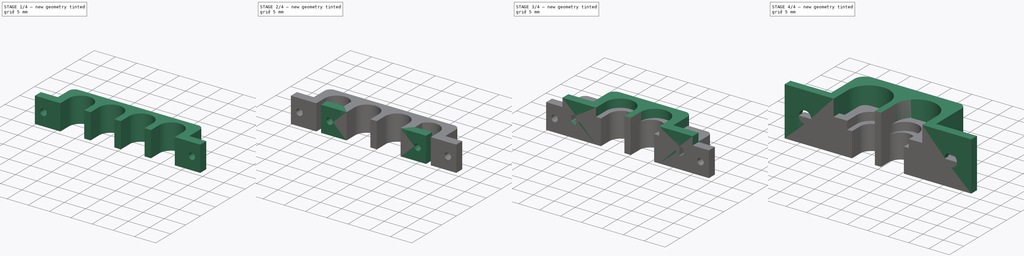
[diagram: build sequence overview — one tinted view per stage of 4, left to right]
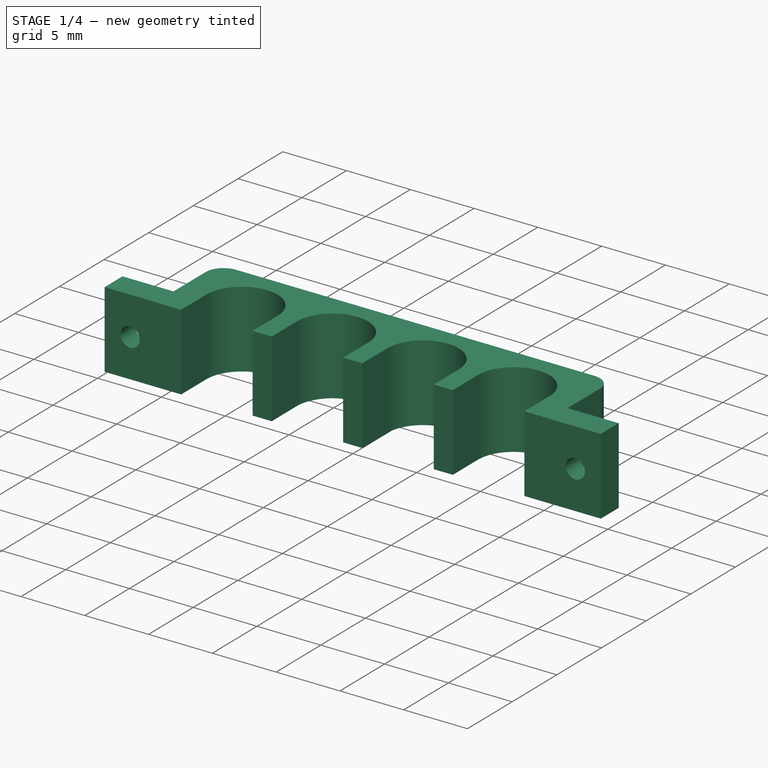
[diagram: stage 1 of 4 — iso view after this stage's code; geometry added in this stage tinted green]
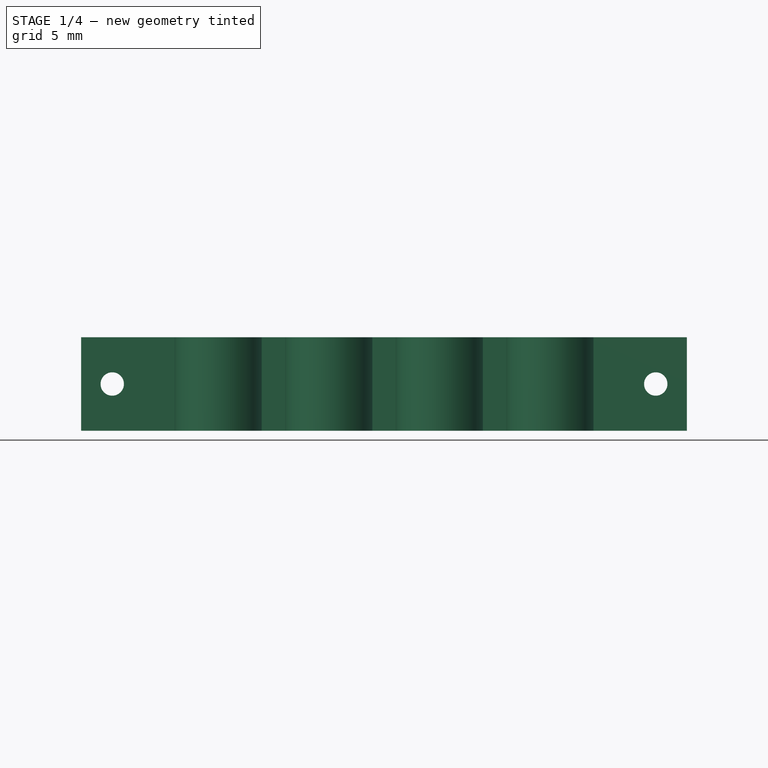
[diagram: stage 1 of 4 — front view after this stage's code; geometry added in this stage tinted green]
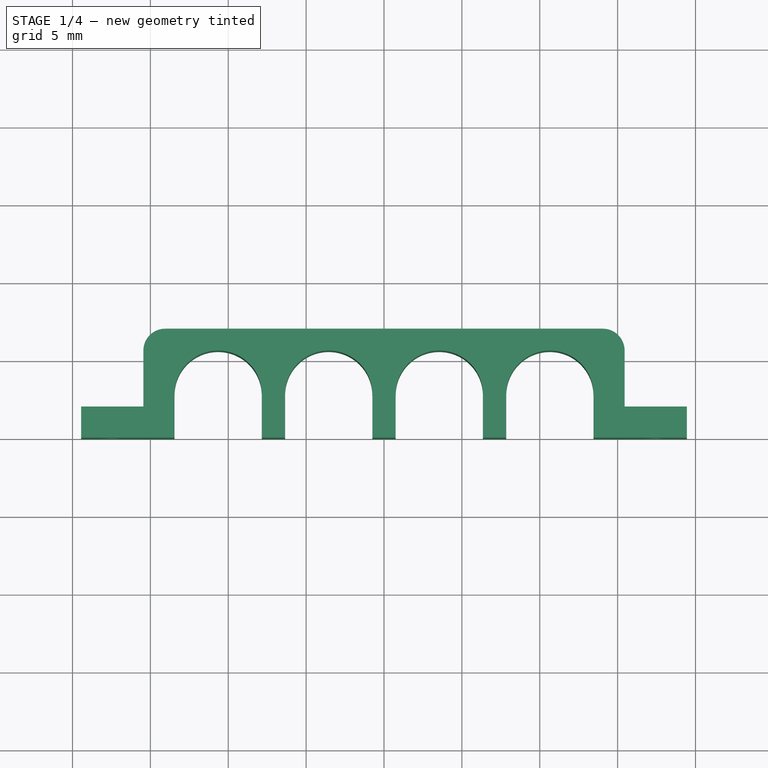
[diagram: stage 1 of 4 — top view after this stage's code; geometry added in this stage tinted green]
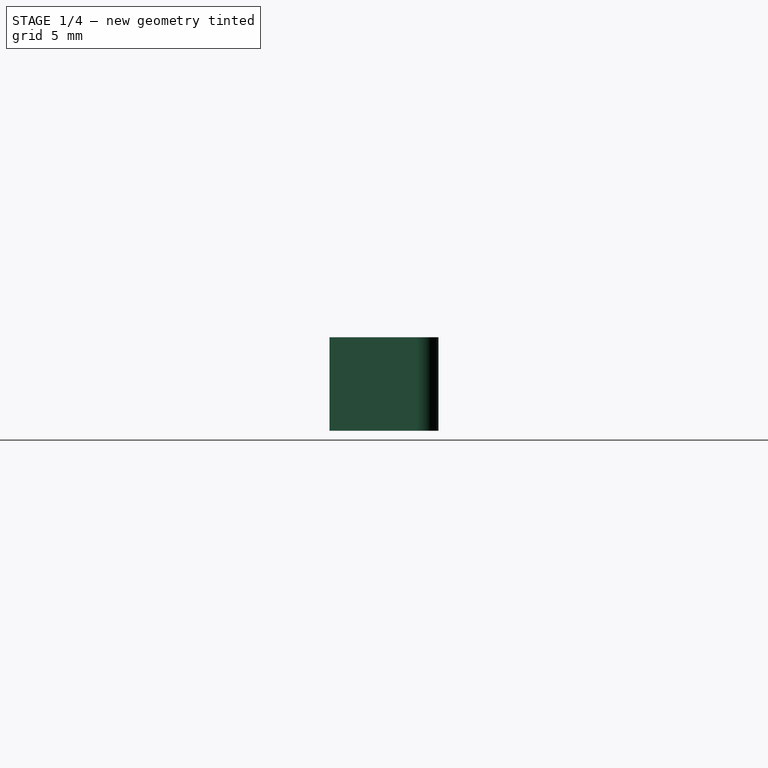
[diagram: stage 1 of 4 — right view after this stage's code; geometry added in this stage tinted green]
FCSTD DOCUMENT  (FreeCAD 0.21R33771 (Git))
Label: Various_Cable_Holders
License: All rights reserved
LicenseURL: http://en.wikipedia.org/wiki/All_rights_reserved
objects: Sketcher::SketchObject×8, PartDesign::Pad×4, PartDesign::Pocket×4, PartDesign::Chamfer×4, PartDesign::Body×4, App::Part×4, Spreadsheet::Sheet×1
note: 36 computed .brp shape members not serialized (recipe doc carries the construction recipe); baked Part::Feature solids carry a one-line shape summary decoded from their .brp

FEATURE [PartDesign::Body] Body002  label="2x10gBody"
  Group = -> [Sketch004,Pad002,Sketch005,Pocket002,Chamfer002]
  Origin = -> Origin005
  Tip = -> Chamfer002
FEATURE [App::Part] Part002  label="2x10gPart"
  Group = -> [Body002]
  Origin = -> Origin004
FEATURE [Sketcher::SketchObject] Sketch008
  FullyConstrained = true
  expr: Constraints[62] = <<p>>.depth_10g
  expr: Constraints[63] = <<p>>.depth_10g - <<p>>.holder_thickness
  expr: Constraints[64] = <<p>>.holder_thickness
  expr: Constraints[65] = <<p>>.wire_clearance
  expr: Constraints[66] = <<p>>.diameter_10g + <<p>>.wire_clearance
  expr: Constraints[67] = <<p>>.wire_clearance / 2
  expr: Constraints[70] = <<p>>.wire_clearance / 2
  expr: Constraints[72] = <<p>>.diameter_10g / 2
  expr: Constraints[75] = <<p>>.diameter_10g + <<p>>.wire_clearance / 2
  expr: Constraints[78] = <<p>>.diameter_10g
  expr: Constraints[79] = <<p>>.wire_clearance
  expr: Constraints[80] = <<p>>.diameter_10g / 2
  expr: Constraints[84] = <<p>>.holder_thickness
  expr: Constraints[85] = <<p>>.holder_thickness
  sketch-geometry (28):
    g0: LineSegment StartX=19.45 StartY=0 StartZ=0 EndX=13.45 EndY=0 EndZ=0
    g1: LineSegment StartX=19.45 StartY=2 StartZ=0 EndX=19.45 EndY=0 EndZ=0
    g2: LineSegment StartX=15.45 StartY=5.6 StartZ=0 EndX=15.45 EndY=2 EndZ=0
    g3: ArcOfCircle CenterX=10.65 CenterY=2.8 CenterZ=0 NormalX=0 NormalY=0 NormalZ=1 AngleXU=0 Radius=2.8 StartAngle=0 EndAngle=3.14159
    g4: ArcOfCircle CenterX=3.55 CenterY=2.8 CenterZ=0 NormalX=0 NormalY=0 NormalZ=1 AngleXU=0 Radius=2.8 StartAngle=0 EndAngle=3.14159
    g5: LineSegment StartX=7.85 StartY=2.8 StartZ=0 EndX=7.85 EndY=0 EndZ=0
    g6: LineSegment StartX=13.45 StartY=0 StartZ=0 EndX=13.45 EndY=2.8 EndZ=0
    g7: LineSegment StartX=0.75 StartY=2.8 StartZ=0 EndX=0.75 EndY=0 EndZ=0
    g8: LineSegment StartX=6.35 StartY=0 StartZ=0 EndX=6.35 EndY=2.8 EndZ=0
    g9: LineSegment StartX=7.85 StartY=0 StartZ=0 EndX=6.35 EndY=0 EndZ=0
    g10: LineSegment StartX=15.45 StartY=2 StartZ=0 EndX=19.45 EndY=2 EndZ=0
    g11: ArcOfCircle CenterX=14.05 CenterY=5.6 CenterZ=0 NormalX=0 NormalY=0 NormalZ=1 AngleXU=0 Radius=1.4 StartAngle=0 EndAngle=1.5708
    g12: LineSegment StartX=14.05 StartY=7 StartZ=0 EndX=0 EndY=7 EndZ=0
    g13: LineSegment StartX=0.75 StartY=0 StartZ=0 EndX=0 EndY=0 EndZ=0
    g14: LineSegment StartX=-19.45 StartY=0 StartZ=0 EndX=-13.45 EndY=0 EndZ=0
    g15: LineSegment StartX=-19.45 StartY=2 StartZ=0 EndX=-19.45 EndY=0 EndZ=0
    g16: LineSegment StartX=-15.45 StartY=5.6 StartZ=0 EndX=-15.45 EndY=2 EndZ=0
    g17: ArcOfCircle CenterX=-10.65 CenterY=2.8 CenterZ=0 NormalX=0 NormalY=0 NormalZ=1 AngleXU=0 Radius=2.8 StartAngle=6.28319 EndAngle=9.42478
    g18: ArcOfCircle CenterX=-3.55 CenterY=2.8 CenterZ=0 NormalX=0 NormalY=0 NormalZ=1 AngleXU=0 Radius=2.8 StartAngle=0 EndAngle=3.14159
    g19: LineSegment StartX=-7.85 StartY=2.8 StartZ=0 EndX=-7.85 EndY=0 EndZ=0
    g20: LineSegment StartX=-13.45 StartY=0 StartZ=0 EndX=-13.45 EndY=2.8 EndZ=0
    g21: LineSegment StartX=-0.75 StartY=2.8 StartZ=0 EndX=-0.75 EndY=0 EndZ=0
    g22: LineSegment StartX=-6.35 StartY=0 StartZ=0 EndX=-6.35 EndY=2.8 EndZ=0
    g23: LineSegment StartX=-7.85 StartY=0 StartZ=0 EndX=-6.35 EndY=0 EndZ=0
    g24: LineSegment StartX=-15.45 StartY=2 StartZ=0 EndX=-19.45 EndY=2 EndZ=0
    g25: ArcOfCircle CenterX=-14.05 CenterY=5.6 CenterZ=0 NormalX=0 NormalY=0 NormalZ=1 AngleXU=0 Radius=1.4 StartAngle=1.5708 EndAngle=3.14159
    g26: LineSegment StartX=-14.05 StartY=7 StartZ=0 EndX=0 EndY=7 EndZ=0
    g27: LineSegment StartX=-0.75 StartY=0 StartZ=0 EndX=0 EndY=0 EndZ=0
  constraints (87):
    c: Coincident(g10,g2)
    c: Coincident(g10,g1)
    c: Coincident(g1,g0)
    c: Coincident(g6,g0)
    c: Coincident(g9,g5)
    c: Coincident(g9,g8)
    c: Diameter(g3) = 5.6
    c: Diameter(g4) = 5.6
    c: Coincident(g8,g4)
    c: Coincident(g5,g3)
    c: Coincident(g3,g6)
    c: Coincident(g4,g7)
    c: Tangent(g2,g11) = 1.5708
    c: Diameter(g11) = 2.8
    c: Vertical(g2)
    c: Coincident(g12,g11)
    c: Horizontal(g12)
    c: Coincident(g13,g7)
    c: Coincident(g24,g16)
    c: Coincident(g24,g15)
    c: Coincident(g15,g14)
    c: Coincident(g20,g14)
    c: Coincident(g23,g19)
    c: Coincident(g23,g22)
    c: Diameter(g17) = 5.6
    c: Diameter(g18) = 5.6
    c: DistanceX(g17,g18) = 7.1
    c: DistanceX(g24,g24) = 4
    c: DistanceX(g14,g14) = 6
    c: DistanceY(g15,g15) = 2
    c: DistanceX(g23,g23) = 1.5
    c: DistanceY(g19,g-1) = 0
    c: DistanceY(g-1,g17) = 2.8
    c: DistanceY(g-1,g18) = 2.8
    c: DistanceY(g21,g-1) = 0
    c: DistanceY(g-1,g14) = 0
    c: DistanceY(g-1,g14) = 0
    c: DistanceY(g-1,g17) = 2.8
    c: DistanceY(g-1,g18) = 2.8
    c: DistanceX(g19,g22) = 1.5
    c: Coincident(g22,g18)
    c: Coincident(g19,g17)
    c: DistanceY(g22,g-1) = 0
    c: Coincident(g17,g20)
    c: Coincident(g18,g21)
    c: Tangent(g16,g25) = -1.5708
    c: Diameter(g25) = 2.8
    c: Vertical(g16)
    c: DistanceY(g-1,g16) = 2
    c: DistanceY(g-1,g25) = 5.6
    c: Coincident(g26,g25)
    c: Horizontal(g26)
    c: DistanceX(g25,g25) = 0
    c: DistanceX(g16,g17) = 2
    c: DistanceX(g17,g19) = 2.8
    c: DistanceX(g18,g21) = 2.8
    c: DistanceX(g14,g17) = 2.8
    c: DistanceX(g21,g-1) = 0.75
    c: DistanceX(g26,g-1) = 0
    c: DistanceY(g22,g22) = 2.8
    c: Coincident(g27,g21)
    c: Coincident(g27,g-1)
    c: DistanceX(g0,g0) = 6
    c: DistanceX(g10,g10) = 4
    c: DistanceY(g1,g1) = 2
    c: DistanceX(g9,g9) = 1.5
    c: DistanceX(g4,g3) = 7.1
    c: DistanceX(g13,g4) = 0.75
    c: DistanceY(g27,g7) = 0
    c: Coincident(g27,g13)
    c: DistanceX(g13,g7) = 0.75
    c: DistanceY(g4,g4) = 0
    c: DistanceY(g7,g4) = 2.8
    c: DistanceY(g4,g4) = 0
    c: DistanceY(g13,g8) = 0
    c: DistanceX(g13,g8) = 6.35
    c: DistanceY(g13,g5) = 0
    c: DistanceY(g13,g0) = 0
    c: DistanceX(g5,g0) = 5.6
    c: DistanceX(g4,g3) = 1.5
    c: DistanceY(g5,g3) = 2.8
    c: DistanceY(g3,g3) = 0
    c: Coincident(g26,g12)
    c: DistanceY(g0,g13) = 0
    c: DistanceX(g3,g2) = 2
    c: DistanceY(g13,g2) = 2
    c: DistanceX(g11,g11) = 0
FEATURE [PartDesign::Pad] Pad003  label="4x10gBodyPad"
  Direction = (0,0,1)
  Length = 6
  Length2 = 10
  Profile = -> Sketch008
  ReferenceAxis = -> Sketch008 [N_Axis]
  Type = 0
  expr: Length = <<p>>.depth_10g
FEATURE [Sketcher::SketchObject] Sketch009
  FullyConstrained = true
  MapMode = 5
  Placement = pos=(0,2,0) rot=(0,0.707107,0.707107;3.14159rad)
  Support = -> [Pad003]
  expr: Constraints[1] = <<p>>.hole_10g
  expr: Constraints[3] = <<p>>.depth_10g / 2
  expr: Constraints[4] = <<p>>.wire_clearance / 2 + <<p>>.diameter_10g + <<p>>.wire_clearance + <<p>>.diameter_10g + (<<p>>.depth_10g + <<p>>.holder_thickness) / 2
  expr: Constraints[5] = <<p>>.wire_clearance / 2 + <<p>>.diameter_10g + <<p>>.wire_clearance + <<p>>.diameter_10g + (<<p>>.depth_10g + <<p>>.holder_thickness) / 2
  sketch-geometry (2):
    g0: Circle CenterX=-17.45 CenterY=3 CenterZ=0 NormalX=0 NormalY=0 NormalZ=1 AngleXU=0 Radius=0.75
    g1: Circle CenterX=17.45 CenterY=3 CenterZ=0 NormalX=0 NormalY=0 NormalZ=1 AngleXU=0 Radius=0.75
  constraints (6):
    c: Equal(g0,g1)
    c: Diameter(g0) = 1.5
    c: DistanceY(g1,g0) = 0
    c: DistanceY(g-1,g0) = 3
    c: DistanceX(g0,g-1) = 17.45
    c: DistanceX(g-1,g1) = 17.45
FEATURE [PartDesign::Pocket] Pocket003  label="ScrewPockets003"
  BaseFeature = -> Pad003
  Direction = (0,-1,2e-16)
  Length = 2
  Length2 = 5
  Profile = -> Sketch009
  ReferenceAxis = -> Sketch009 [N_Axis]
  Type = 0
  expr: Length = <<p>>.holder_thickness
FEATURE [PartDesign::Chamfer] Chamfer003
  Angle = 45
  Base = -> Pocket003 [Edge11,Edge87]
  BaseFeature = -> Pocket003
  ChamferType = 0
  FlipDirection = false
  Size = 0.375
  Size2 = 1
  SupportTransform = false
  UseAllEdges = false
  expr: Size = <<p>>.hole_10g / 4
FEATURE [PartDesign::Body] Body003  label="4x10gBody"
  Group = -> [Sketch008,Pad003,Sketch009,Pocket003,Chamfer003]
  Origin = -> Origin007
  Tip = -> Chamfer003
FEATURE [App::Part] Part003  label="4x10gPart"
  Group = -> [Body003]
  Origin = -> Origin006
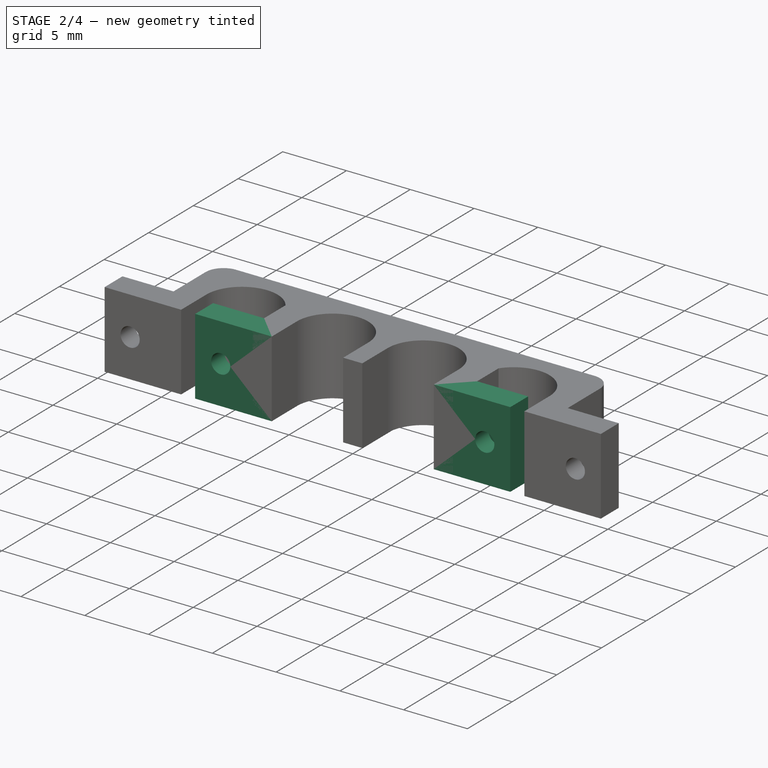
[diagram: stage 2 of 4 — iso view after this stage's code; geometry added in this stage tinted green]
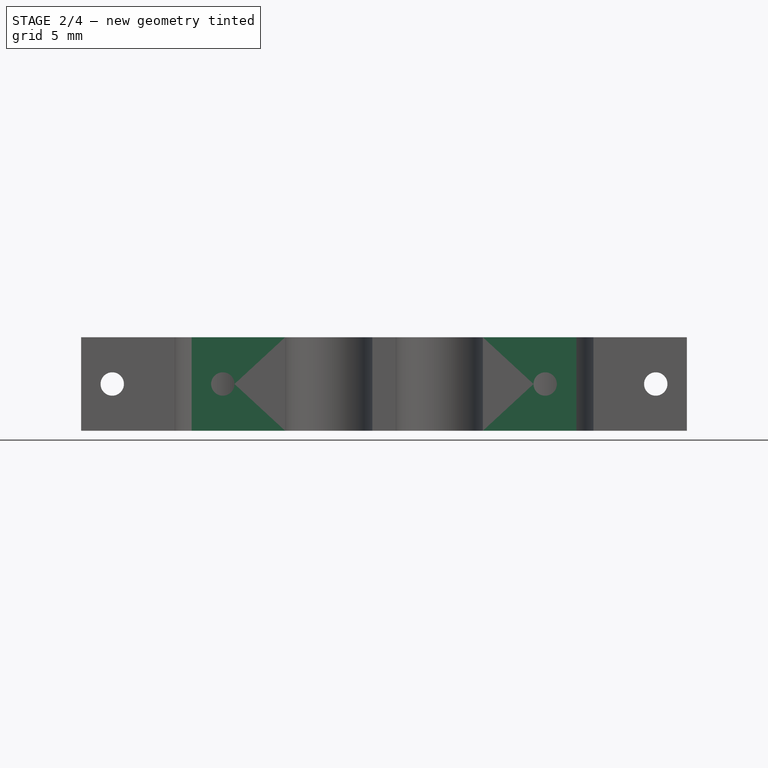
[diagram: stage 2 of 4 — front view after this stage's code; geometry added in this stage tinted green]
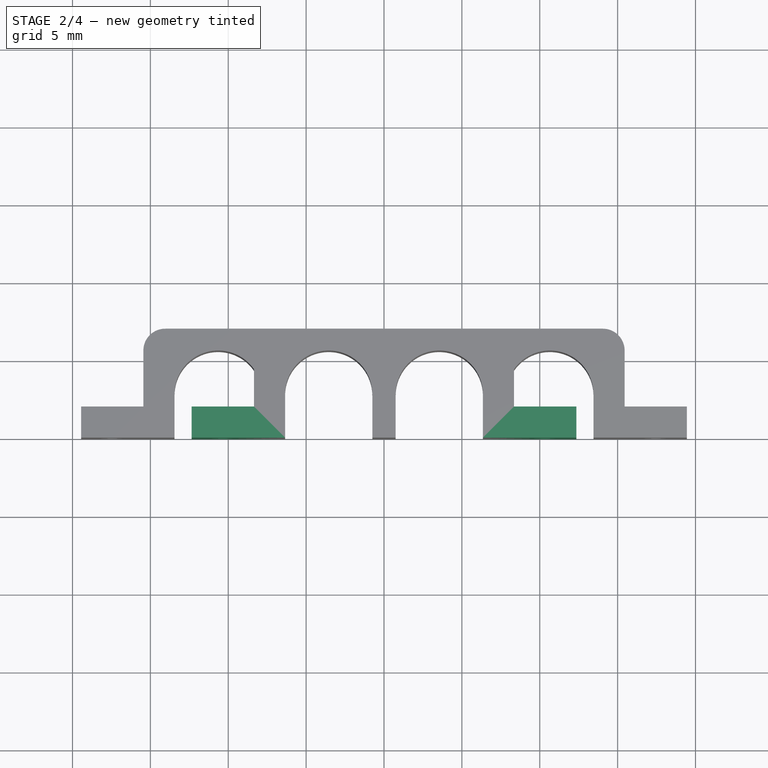
[diagram: stage 2 of 4 — top view after this stage's code; geometry added in this stage tinted green]
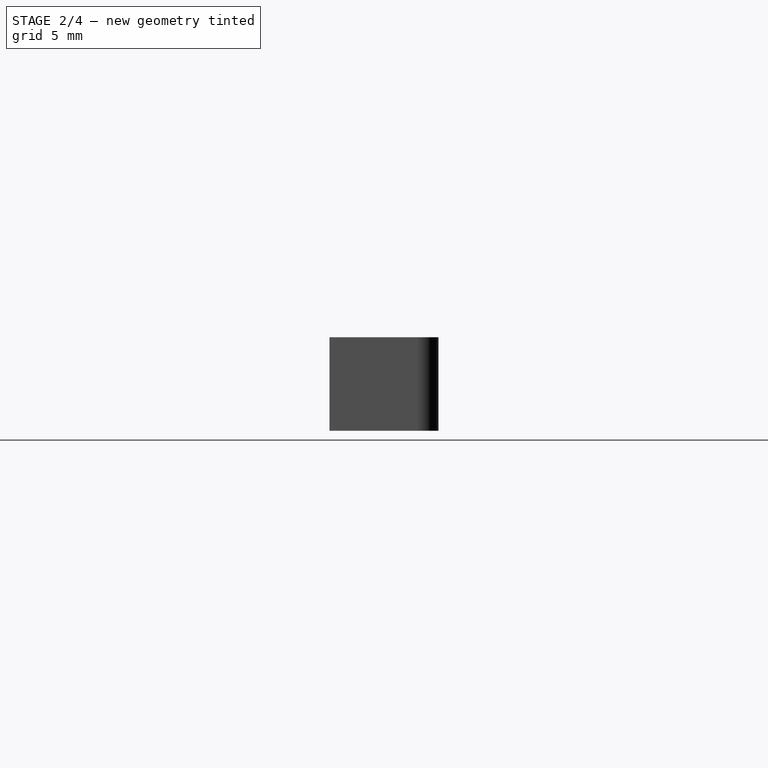
[diagram: stage 2 of 4 — right view after this stage's code; geometry added in this stage tinted green]
FEATURE [PartDesign::Body] Body  label="2x8gBody"
  Group = -> [Sketch,Pad,Sketch001,Pocket,Chamfer]
  Origin = -> Origin001
  Tip = -> Chamfer
FEATURE [App::Part] Part  label="2x8gPart"
  Group = -> [Body]
  Origin = -> Origin
FEATURE [Sketcher::SketchObject] Sketch004
  FullyConstrained = true
  MapMode = 5
  Support = -> [XY_Plane005]
  expr: Constraints[10] = Spreadsheet.diameter_10g
  expr: Constraints[11] = Spreadsheet.diameter_10g
  expr: Constraints[12] = Spreadsheet.diameter_10g + <<p>>.wire_clearance
  expr: Constraints[13] = Spreadsheet.diameter_10g / 2 + <<p>>.wire_clearance / 2
  expr: Constraints[14] = Spreadsheet.depth_10g - <<p>>.holder_thickness
  expr: Constraints[15] = Spreadsheet.depth_10g - <<p>>.holder_thickness
  expr: Constraints[16] = Spreadsheet.depth_10g
  expr: Constraints[17] = Spreadsheet.depth_10g
  expr: Constraints[18] = Spreadsheet.diameter_10g + <<p>>.wire_clearance / 2
  expr: Constraints[19] = Spreadsheet.diameter_10g + <<p>>.wire_clearance / 2
  expr: Constraints[20] = <<p>>.holder_thickness
  expr: Constraints[21] = <<p>>.holder_thickness
  expr: Constraints[22] = <<p>>.wire_clearance
  expr: Constraints[24] = <<p>>.wire_clearance / 2
  expr: Constraints[25] = Spreadsheet.diameter_10g / 2
  expr: Constraints[26] = Spreadsheet.diameter_10g / 2
  expr: Constraints[31] = Spreadsheet.diameter_10g + <<p>>.holder_thickness + <<p>>.wire_clearance / 2
  expr: Constraints[32] = Spreadsheet.diameter_10g + <<p>>.holder_thickness + <<p>>.wire_clearance / 2
  expr: Constraints[33] = <<p>>.holder_thickness
  expr: Constraints[34] = Spreadsheet.diameter_10g / 2
  expr: Constraints[35] = Spreadsheet.diameter_10g / 2
  expr: Constraints[36] = <<p>>.wire_clearance
  expr: Constraints[37] = <<p>>.wire_clearance / 2
  expr: Constraints[47] = Spreadsheet.diameter_10g / 2
  expr: Constraints[48] = Spreadsheet.diameter_10g / 2
  expr: Constraints[52] = <<p>>.holder_thickness
  expr: Constraints[53] = Spreadsheet.diameter_10g
  sketch-geometry (18):
    g0: LineSegment StartX=-12.35 StartY=0 StartZ=0 EndX=-6.35 EndY=0 EndZ=0
    g1: LineSegment StartX=12.35 StartY=0 StartZ=0 EndX=12.35 EndY=2 EndZ=0
    g2: LineSegment StartX=12.35 StartY=2 StartZ=0 EndX=8.35 EndY=2 EndZ=0
    g3: LineSegment StartX=-12.35 StartY=2 StartZ=0 EndX=-12.35 EndY=0 EndZ=0
    g4: LineSegment StartX=8.35 StartY=2 StartZ=0 EndX=8.35 EndY=5.6 EndZ=0
    g5: LineSegment StartX=6.95 StartY=7 StartZ=0 EndX=-6.95 EndY=7 EndZ=0
    g6: LineSegment StartX=-8.35 StartY=5.6 StartZ=0 EndX=-8.35 EndY=2 EndZ=0
    g7: ArcOfCircle CenterX=-3.55 CenterY=2.8 CenterZ=0 NormalX=0 NormalY=0 NormalZ=1 AngleXU=0 Radius=2.8 StartAngle=1.74551e-07 EndAngle=3.14159
    g8: ArcOfCircle CenterX=3.55 CenterY=2.8 CenterZ=0 NormalX=0 NormalY=0 NormalZ=1 AngleXU=0 Radius=2.8 StartAngle=1e-16 EndAngle=3.14159
    g9: LineSegment StartX=-0.75 StartY=2.8 StartZ=0 EndX=-0.75 EndY=0 EndZ=0
    g10: LineSegment StartX=-6.35 StartY=0 StartZ=0 EndX=-6.35 EndY=2.8 EndZ=0
    g11: LineSegment StartX=6.35 StartY=2.8 StartZ=0 EndX=6.35 EndY=0 EndZ=0
    g12: LineSegment StartX=0.75 StartY=0 StartZ=0 EndX=0.75 EndY=2.8 EndZ=0
    g13: LineSegment StartX=6.35 StartY=0 StartZ=0 EndX=12.35 EndY=0 EndZ=0
    g14: LineSegment StartX=-0.75 StartY=0 StartZ=0 EndX=0.75 EndY=0 EndZ=0
    g15: LineSegment StartX=-8.35 StartY=2 StartZ=0 EndX=-12.35 EndY=2 EndZ=0
    g16: ArcOfCircle CenterX=-6.95 CenterY=5.6 CenterZ=0 NormalX=0 NormalY=0 NormalZ=1 AngleXU=0 Radius=1.4 StartAngle=1.5708 EndAngle=3.14159
    g17: ArcOfCircle CenterX=6.95 CenterY=5.6 CenterZ=0 NormalX=0 NormalY=0 NormalZ=1 AngleXU=0 Radius=1.4 StartAngle=1e-16 EndAngle=1.5708
  constraints (54):
    c: Coincident(g2,g1)
    c: Coincident(g13,g1)
    c: Coincident(g4,g2)
    c: Coincident(g15,g6)
    c: Coincident(g15,g3)
    c: Coincident(g3,g0)
    c: Coincident(g10,g0)
    c: Coincident(g14,g9)
    c: Coincident(g14,g12)
    c: Coincident(g13,g11)
    c: Diameter(g7) = 5.6
    c: Diameter(g8) = 5.6
    c: DistanceX(g7,g8) = 7.1
    c: DistanceX(g7,g-1) = 3.55
    c: DistanceX(g15,g15) = 4
    c: DistanceX(g2,g2) = 4
    c: DistanceX(g0,g0) = 6
    c: DistanceX(g13,g13) = 6
    c: DistanceX(g0,g-1) = 6.35
    c: DistanceX(g-1,g11) = 6.35
    c: DistanceY(g3,g3) = 2
    c: DistanceY(g1,g1) = 2
    c: DistanceX(g14,g14) = 1.5
    c: DistanceY(g9,g-1) = 0
    c: DistanceX(g9,g-1) = 0.75
    c: DistanceY(g-1,g7) = 2.8
    c: DistanceY(g-1,g8) = 2.8
    c: DistanceY(g11,g-1) = 0
    c: DistanceY(g-1,g1) = 0
    c: DistanceY(g-1,g0) = 0
    c: DistanceY(g-1,g0) = 0
    c: DistanceX(g6,g-1) = 8.35
    c: DistanceX(g-1,g2) = 8.35
    c: DistanceY(g-1,g2) = 2
    c: DistanceY(g-1,g7) = 2.8
    c: DistanceY(g-1,g8) = 2.8
    c: DistanceX(g9,g12) = 1.5
    c: DistanceX(g-1,g12) = 0.75
    c: Coincident(g12,g8)
    c: Coincident(g9,g7)
    c: DistanceY(g12,g-1) = 0
    c: Coincident(g7,g10)
    c: Coincident(g8,g11)
    c: Tangent(g6,g16) = -1.5708
    c: Tangent(g5,g16) = -1.5708
    c: Tangent(g4,g17) = -1.5708
    c: Tangent(g5,g17) = -1.5708
    c: Diameter(g17) = 2.8
    c: Diameter(g16) = 2.8
    c: Horizontal(g5)
    c: Vertical(g6)
    c: Vertical(g4)
    c: DistanceY(g-1,g6) = 2
    c: DistanceY(g-1,g16) = 5.6
FEATURE [PartDesign::Pad] Pad002  label="2x10gBodyPad"
  Direction = (0,0,1)
  Length = 6
  Length2 = 10
  Profile = -> Sketch004
  ReferenceAxis = -> Sketch004 [N_Axis]
  Type = 0
  expr: Length = Spreadsheet.depth_10g
FEATURE [Sketcher::SketchObject] Sketch005
  FullyConstrained = true
  MapMode = 5
  Placement = pos=(0,2,0) rot=(0,0.707107,0.707107;3.14159rad)
  Support = -> [Pad002]
  expr: Constraints[1] = Spreadsheet.hole_10g
  expr: Constraints[3] = Spreadsheet.depth_10g / 2
  expr: Constraints[4] = (Spreadsheet.depth_10g + <<p>>.holder_thickness) / 2 + Spreadsheet.diameter_10g + <<p>>.wire_clearance / 2
  expr: Constraints[5] = (Spreadsheet.depth_10g + <<p>>.holder_thickness) / 2 + Spreadsheet.diameter_10g + <<p>>.wire_clearance / 2
  sketch-geometry (2):
    g0: Circle CenterX=-10.35 CenterY=3 CenterZ=0 NormalX=0 NormalY=0 NormalZ=1 AngleXU=0 Radius=0.75
    g1: Circle CenterX=10.35 CenterY=3 CenterZ=0 NormalX=0 NormalY=0 NormalZ=1 AngleXU=0 Radius=0.75
  constraints (6):
    c: Equal(g0,g1)
    c: Diameter(g0) = 1.5
    c: DistanceY(g0,g1) = 0
    c: DistanceY(g-1,g0) = 3
    c: DistanceX(g0,g-1) = 10.35
    c: DistanceX(g-1,g1) = 10.35
FEATURE [PartDesign::Pocket] Pocket002  label="ScrewPockets002"
  BaseFeature = -> Pad002
  Direction = (0,-1,2e-16)
  Length = 2
  Length2 = 5
  Profile = -> Sketch005
  ReferenceAxis = -> Sketch005 [N_Axis]
  Type = 0
  expr: Length = <<p>>.hole_8g
FEATURE [PartDesign::Chamfer] Chamfer002
  Angle = 45
  Base = -> Pocket002 [Edge44,Edge53,Edge45]
  BaseFeature = -> Pocket002
  ChamferType = 0
  FlipDirection = false
  Size = 0.5
  Size2 = 1
  SupportTransform = false
  UseAllEdges = false
  expr: Size = Spreadsheet.hole_8g / 4
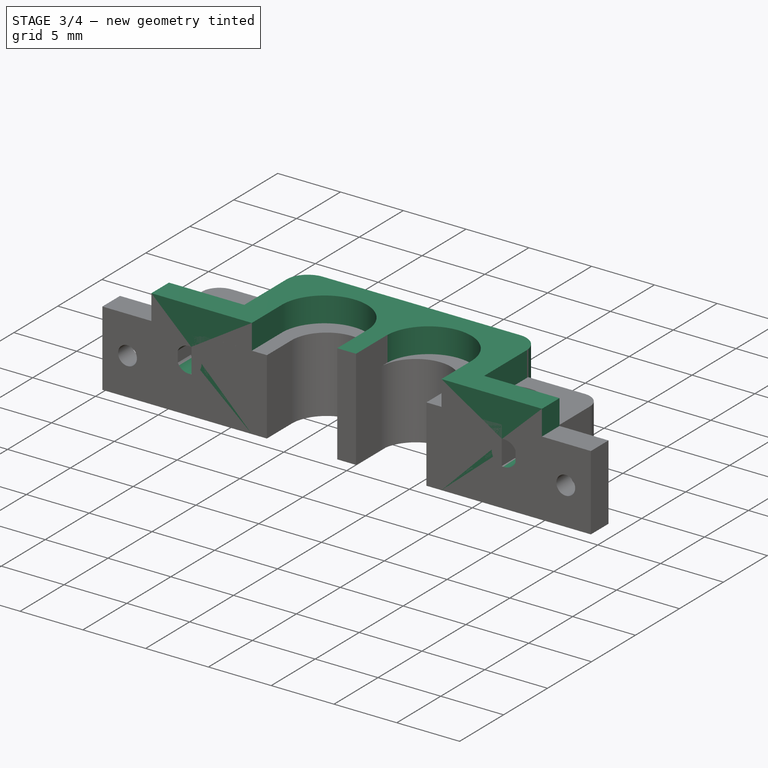
[diagram: stage 3 of 4 — iso view after this stage's code; geometry added in this stage tinted green]
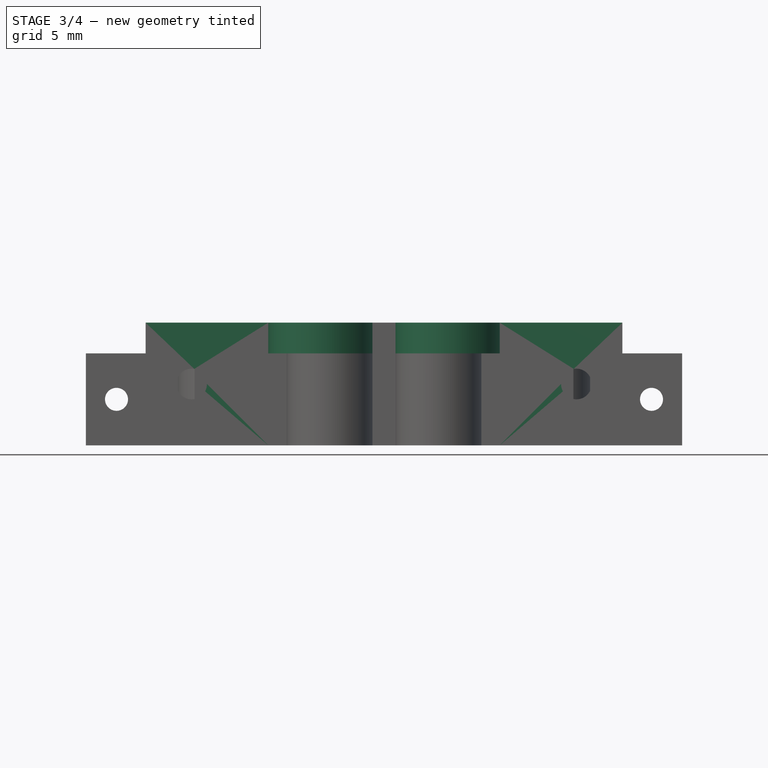
[diagram: stage 3 of 4 — front view after this stage's code; geometry added in this stage tinted green]
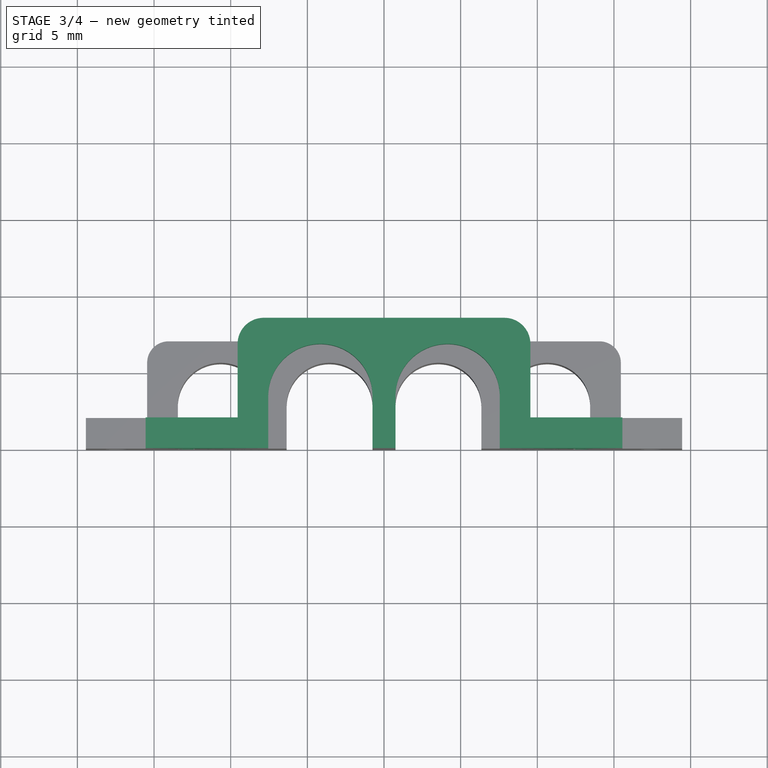
[diagram: stage 3 of 4 — top view after this stage's code; geometry added in this stage tinted green]
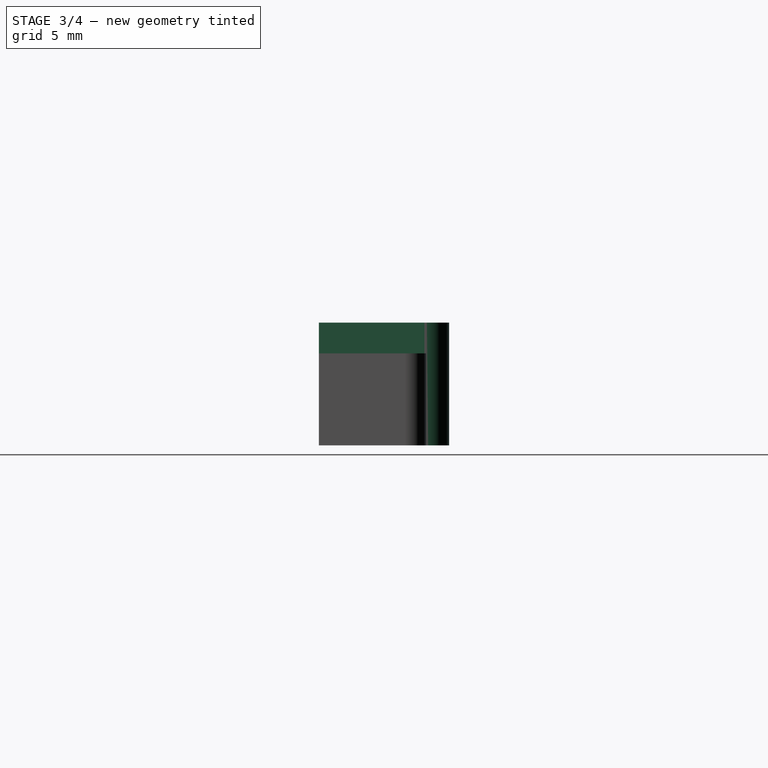
[diagram: stage 3 of 4 — right view after this stage's code; geometry added in this stage tinted green]
FEATURE [Sketcher::SketchObject] Sketch
  FullyConstrained = true
  MapMode = 5
  Support = -> [XY_Plane001]
  expr: Constraints[10] = Spreadsheet.diameter_8g
  expr: Constraints[11] = Spreadsheet.diameter_8g
  expr: Constraints[12] = Spreadsheet.diameter_8g + <<p>>.wire_clearance
  expr: Constraints[13] = Spreadsheet.diameter_8g / 2 + <<p>>.wire_clearance / 2
  expr: Constraints[14] = Spreadsheet.depth_8g - <<p>>.holder_thickness
  expr: Constraints[15] = Spreadsheet.depth_8g - <<p>>.holder_thickness
  expr: Constraints[16] = Spreadsheet.depth_8g
  expr: Constraints[17] = Spreadsheet.depth_8g
  expr: Constraints[18] = Spreadsheet.diameter_8g + <<p>>.wire_clearance / 2
  expr: Constraints[19] = Spreadsheet.diameter_8g + <<p>>.wire_clearance / 2
  expr: Constraints[20] = <<p>>.holder_thickness
  expr: Constraints[21] = <<p>>.holder_thickness
  expr: Constraints[22] = <<p>>.wire_clearance
  expr: Constraints[24] = <<p>>.wire_clearance / 2
  expr: Constraints[25] = Spreadsheet.diameter_8g / 2
  expr: Constraints[26] = Spreadsheet.diameter_8g / 2
  expr: Constraints[31] = Spreadsheet.diameter_8g + <<p>>.holder_thickness + <<p>>.wire_clearance / 2
  expr: Constraints[32] = Spreadsheet.diameter_8g + <<p>>.holder_thickness + <<p>>.wire_clearance / 2
  expr: Constraints[33] = <<p>>.holder_thickness
  expr: Constraints[34] = Spreadsheet.diameter_8g / 2
  expr: Constraints[35] = Spreadsheet.diameter_8g / 2
  expr: Constraints[36] = <<p>>.wire_clearance
  expr: Constraints[37] = <<p>>.wire_clearance / 2
  expr: Constraints[47] = Spreadsheet.diameter_8g / 2
  expr: Constraints[48] = Spreadsheet.diameter_8g / 2
  expr: Constraints[52] = <<p>>.holder_thickness
  expr: Constraints[53] = Spreadsheet.diameter_8g
  sketch-geometry (18):
    g0: LineSegment StartX=-15.55 StartY=0 StartZ=0 EndX=-7.55 EndY=0 EndZ=0
    g1: LineSegment StartX=15.55 StartY=0 StartZ=0 EndX=15.55 EndY=2 EndZ=0
    g2: LineSegment StartX=15.55 StartY=2 StartZ=0 EndX=9.55 EndY=2 EndZ=0
    g3: LineSegment StartX=-15.55 StartY=2 StartZ=0 EndX=-15.55 EndY=0 EndZ=0
    g4: LineSegment StartX=9.55 StartY=2 StartZ=0 EndX=9.55 EndY=6.8 EndZ=0
    g5: LineSegment StartX=7.85 StartY=8.5 StartZ=0 EndX=-7.85 EndY=8.5 EndZ=0
    g6: LineSegment StartX=-9.55 StartY=6.8 StartZ=0 EndX=-9.55 EndY=2 EndZ=0
    g7: ArcOfCircle CenterX=-4.15 CenterY=3.4 CenterZ=0 NormalX=0 NormalY=0 NormalZ=1 AngleXU=0 Radius=3.4 StartAngle=6.28318 EndAngle=9.42478
    g8: ArcOfCircle CenterX=4.15 CenterY=3.4 CenterZ=0 NormalX=0 NormalY=0 NormalZ=1 AngleXU=0 Radius=3.4 StartAngle=0 EndAngle=3.14159
    g9: LineSegment StartX=-0.75 StartY=3.39999 StartZ=0 EndX=-0.75 EndY=0 EndZ=0
    g10: LineSegment StartX=-7.55 StartY=0 StartZ=0 EndX=-7.55 EndY=3.4 EndZ=0
    g11: LineSegment StartX=7.55 StartY=3.4 StartZ=0 EndX=7.55 EndY=0 EndZ=0
    g12: LineSegment StartX=0.75 StartY=0 StartZ=0 EndX=0.75 EndY=3.4 EndZ=0
    g13: LineSegment StartX=7.55 StartY=0 StartZ=0 EndX=15.55 EndY=0 EndZ=0
    g14: LineSegment StartX=-0.75 StartY=0 StartZ=0 EndX=0.75 EndY=0 EndZ=0
    g15: LineSegment StartX=-9.55 StartY=2 StartZ=0 EndX=-15.55 EndY=2 EndZ=0
    g16: ArcOfCircle CenterX=-7.85 CenterY=6.8 CenterZ=0 NormalX=0 NormalY=0 NormalZ=1 AngleXU=0 Radius=1.7 StartAngle=1.5708 EndAngle=3.14159
    g17: ArcOfCircle CenterX=7.85 CenterY=6.8 CenterZ=0 NormalX=0 NormalY=0 NormalZ=1 AngleXU=0 Radius=1.7 StartAngle=1e-16 EndAngle=1.5708
  constraints (54):
    c: Coincident(g2,g1)
    c: Coincident(g13,g1)
    c: Coincident(g4,g2)
    c: Coincident(g15,g6)
    c: Coincident(g15,g3)
    c: Coincident(g3,g0)
    c: Coincident(g10,g0)
    c: Coincident(g14,g9)
    c: Coincident(g14,g12)
    c: Coincident(g13,g11)
    c: Diameter(g7) = 6.8
    c: Diameter(g8) = 6.8
    c: DistanceX(g7,g8) = 8.3
    c: DistanceX(g7,g-1) = 4.15
    c: DistanceX(g15,g15) = 6
    c: DistanceX(g2,g2) = 6
    c: DistanceX(g0,g0) = 8
    c: DistanceX(g13,g13) = 8
    c: DistanceX(g0,g-1) = 7.55
    c: DistanceX(g-1,g11) = 7.55
    c: DistanceY(g3,g3) = 2
    c: DistanceY(g1,g1) = 2
    c: DistanceX(g14,g14) = 1.5
    c: DistanceY(g9,g-1) = 0
    c: DistanceX(g9,g-1) = 0.75
    c: DistanceY(g-1,g7) = 3.4
    c: DistanceY(g-1,g8) = 3.4
    c: DistanceY(g11,g-1) = 0
    c: DistanceY(g-1,g1) = 0
    c: DistanceY(g-1,g0) = 0
    c: DistanceY(g-1,g0) = 0
    c: DistanceX(g6,g-1) = 9.55
    c: DistanceX(g-1,g2) = 9.55
    c: DistanceY(g-1,g2) = 2
    c: DistanceY(g-1,g7) = 3.4
    c: DistanceY(g-1,g8) = 3.4
    c: DistanceX(g9,g12) = 1.5
    c: DistanceX(g-1,g12) = 0.75
    c: Coincident(g12,g8)
    c: Coincident(g9,g7)
    c: DistanceY(g12,g-1) = 0
    c: Coincident(g7,g10)
    c: Coincident(g8,g11)
    c: Tangent(g6,g16) = -1.5708
    c: Tangent(g5,g16) = -1.5708
    c: Tangent(g4,g17) = -1.5708
    c: Tangent(g5,g17) = -1.5708
    c: Diameter(g17) = 3.4
    c: Diameter(g16) = 3.4
    c: Horizontal(g5)
    c: Vertical(g6)
    c: Vertical(g4)
    c: DistanceY(g-1,g6) = 2
    c: DistanceY(g-1,g16) = 6.8
FEATURE [Spreadsheet::Sheet] Spreadsheet  label="p"
  cells = A1='diameter_4g; B1(diameter_4g)=10.1; A2='diameter_8g; B2(diameter_8g)=6.8; A3='diameter_10g; B3(diameter_10g)=5.6; A5='wire_clearance; B5(wire_clearance)=1.5; A6='holder_thickness; B6(holder_thickness)=2; A8='depth_4g; B8(depth_4g)=12; A9='depth_8g; B9(depth_8g)=8; A10='depth_10g; B10(depth_10g)=6; A12='hole_4g; B12(hole_4g)=3; A13='hole_8g; B13(hole_8g)=2; A14='hole_10g; B14(hole_10g)=1.5
FEATURE [PartDesign::Pad] Pad  label="2x8gBodyPad"
  Direction = (0,0,1)
  Length = 8
  Length2 = 10
  Profile = -> Sketch
  ReferenceAxis = -> Sketch [N_Axis]
  Type = 0
  expr: Length = Spreadsheet.depth_8g
FEATURE [Sketcher::SketchObject] Sketch001
  FullyConstrained = true
  MapMode = 5
  Placement = pos=(0,2,0) rot=(0,0.707107,0.707107;3.14159rad)
  Support = -> [Pad]
  expr: Constraints[1] = Spreadsheet.hole_8g
  expr: Constraints[3] = Spreadsheet.depth_8g / 2
  expr: Constraints[4] = (Spreadsheet.depth_8g + <<p>>.holder_thickness) / 2 + Spreadsheet.diameter_8g + <<p>>.wire_clearance / 2
  expr: Constraints[5] = (Spreadsheet.depth_8g + <<p>>.holder_thickness) / 2 + Spreadsheet.diameter_8g + <<p>>.wire_clearance / 2
  sketch-geometry (2):
    g0: Circle CenterX=-12.55 CenterY=4 CenterZ=0 NormalX=0 NormalY=0 NormalZ=1 AngleXU=0 Radius=1
    g1: Circle CenterX=12.55 CenterY=4 CenterZ=0 NormalX=0 NormalY=0 NormalZ=1 AngleXU=0 Radius=1
  constraints (6):
    c: Equal(g0,g1)
    c: Diameter(g0) = 2
    c: DistanceY(g0,g1) = 0
    c: DistanceY(g-1,g0) = 4
    c: DistanceX(g0,g-1) = 12.55
    c: DistanceX(g-1,g1) = 12.55
FEATURE [PartDesign::Pocket] Pocket  label="ScrewPockets"
  BaseFeature = -> Pad
  Direction = (0,-1,2e-16)
  Length = 2
  Length2 = 5
  Profile = -> Sketch001
  ReferenceAxis = -> Sketch001 [N_Axis]
  Type = 0
  expr: Length = <<p>>.hole_8g
FEATURE [PartDesign::Body] Body001  label="2x4gBody"
  Group = -> [Sketch002,Pad001,Sketch003,Pocket001,Chamfer001]
  Origin = -> Origin003
  Tip = -> Chamfer001
FEATURE [App::Part] Part001  label="2x4gPart"
  Group = -> [Body001]
  Origin = -> Origin002
FEATURE [PartDesign::Chamfer] Chamfer
  Angle = 45
  Base = -> Pocket [Edge44,Edge53,Edge45]
  BaseFeature = -> Pocket
  ChamferType = 0
  FlipDirection = false
  Size = 0.5
  Size2 = 1
  SupportTransform = false
  UseAllEdges = false
  expr: Size = Spreadsheet.hole_8g / 4
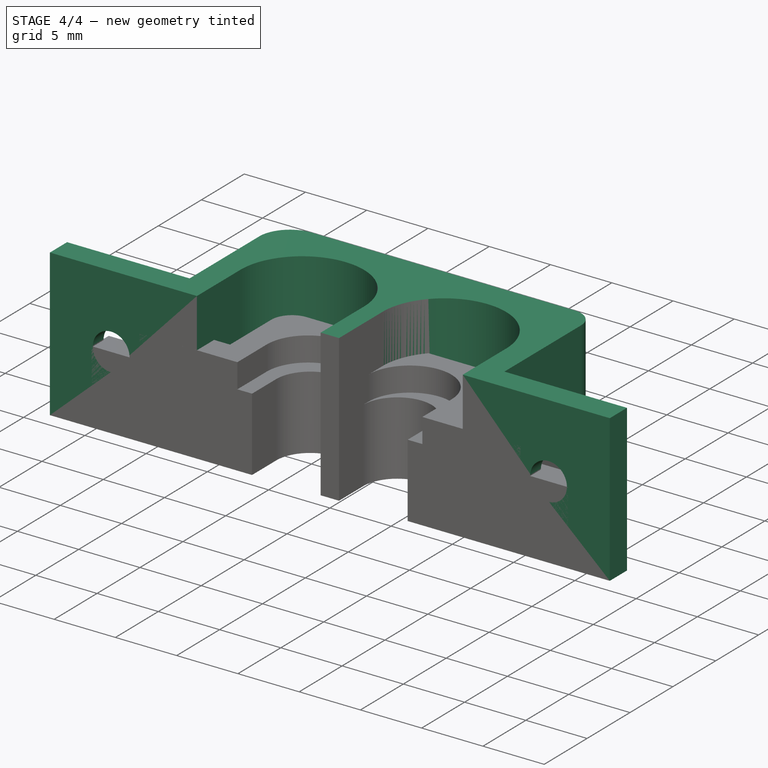
[diagram: stage 4 of 4 — iso view after this stage's code; geometry added in this stage tinted green]
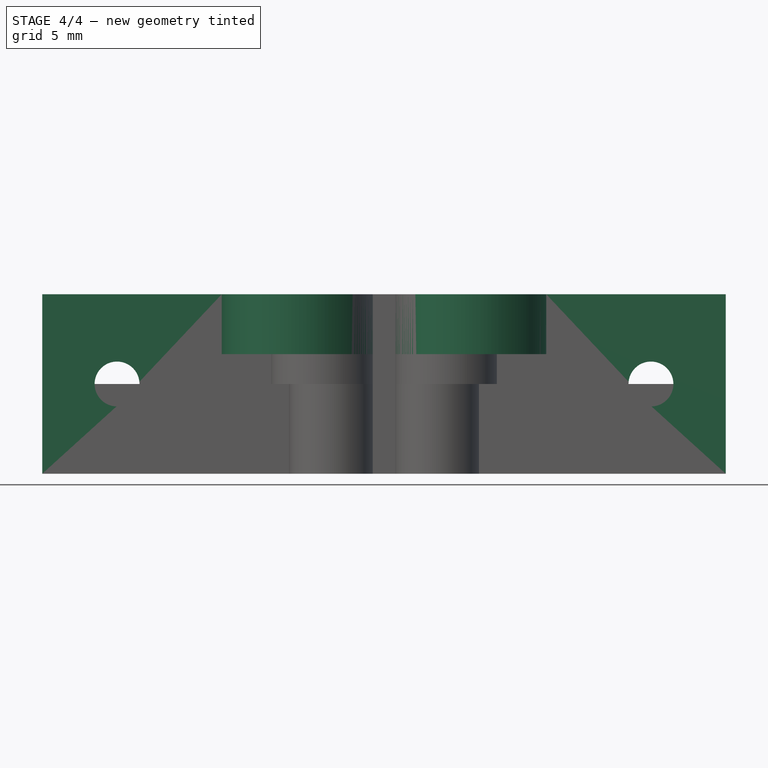
[diagram: stage 4 of 4 — front view after this stage's code; geometry added in this stage tinted green]
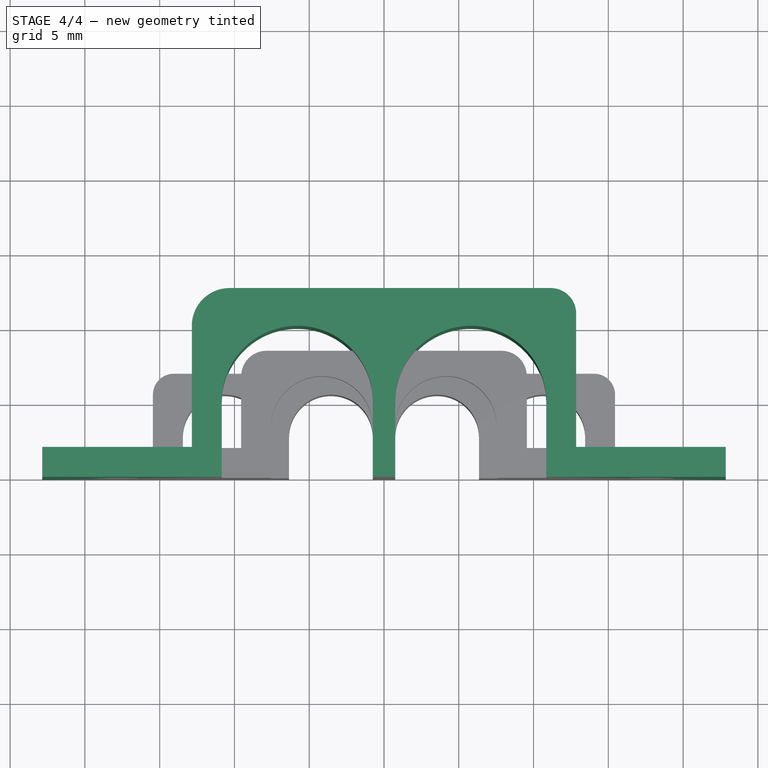
[diagram: stage 4 of 4 — top view after this stage's code; geometry added in this stage tinted green]
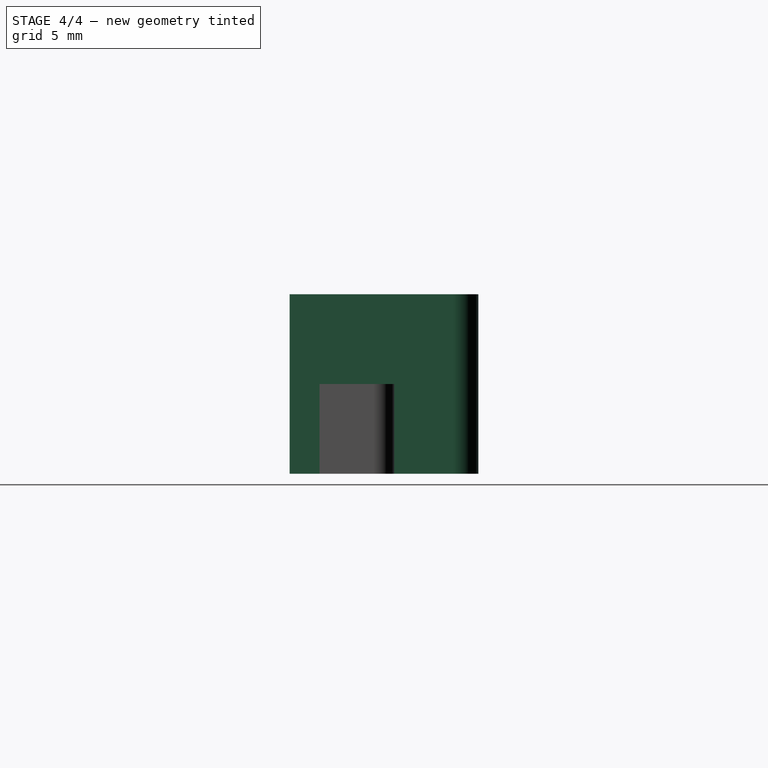
[diagram: stage 4 of 4 — right view after this stage's code; geometry added in this stage tinted green]
FEATURE [Sketcher::SketchObject] Sketch002
  FullyConstrained = true
  MapMode = 5
  Support = -> [XY_Plane003]
  expr: Constraints[10] = Spreadsheet.diameter_4g
  expr: Constraints[11] = Spreadsheet.diameter_4g
  expr: Constraints[12] = Spreadsheet.diameter_4g + <<p>>.wire_clearance
  expr: Constraints[13] = Spreadsheet.diameter_4g / 2 + <<p>>.wire_clearance / 2
  expr: Constraints[14] = Spreadsheet.depth_4g - <<p>>.holder_thickness
  expr: Constraints[15] = Spreadsheet.depth_4g - <<p>>.holder_thickness
  expr: Constraints[16] = Spreadsheet.depth_4g
  expr: Constraints[17] = Spreadsheet.depth_4g
  expr: Constraints[18] = Spreadsheet.diameter_4g + <<p>>.wire_clearance / 2
  expr: Constraints[19] = Spreadsheet.diameter_4g + <<p>>.wire_clearance / 2
  expr: Constraints[20] = <<p>>.holder_thickness
  expr: Constraints[21] = <<p>>.holder_thickness
  expr: Constraints[22] = <<p>>.wire_clearance
  expr: Constraints[24] = <<p>>.wire_clearance / 2
  expr: Constraints[25] = Spreadsheet.diameter_4g / 2
  expr: Constraints[26] = Spreadsheet.diameter_4g / 2
  expr: Constraints[31] = Spreadsheet.diameter_4g + <<p>>.holder_thickness + <<p>>.wire_clearance / 2
  expr: Constraints[32] = Spreadsheet.diameter_4g + <<p>>.holder_thickness + <<p>>.wire_clearance / 2
  expr: Constraints[33] = <<p>>.holder_thickness
  expr: Constraints[34] = Spreadsheet.diameter_4g / 2
  expr: Constraints[35] = Spreadsheet.diameter_4g / 2
  expr: Constraints[36] = <<p>>.wire_clearance
  expr: Constraints[37] = <<p>>.wire_clearance / 2
  expr: Constraints[47] = Spreadsheet.diameter_8g / 2
  expr: Constraints[48] = Spreadsheet.diameter_4g / 2
  expr: Constraints[52] = <<p>>.holder_thickness
  expr: Constraints[53] = Spreadsheet.diameter_4g
  sketch-geometry (18):
    g0: LineSegment StartX=-22.85 StartY=2e-16 StartZ=0 EndX=-10.85 EndY=0 EndZ=0
    g1: LineSegment StartX=22.85 StartY=0 StartZ=0 EndX=22.85 EndY=2 EndZ=0
    g2: LineSegment StartX=22.85 StartY=2 StartZ=0 EndX=12.85 EndY=2 EndZ=0
    g3: LineSegment StartX=-22.85 StartY=2 StartZ=0 EndX=-22.85 EndY=2e-16 EndZ=0
    g4: LineSegment StartX=12.85 StartY=2 StartZ=0 EndX=12.85 EndY=10.925 EndZ=0
    g5: LineSegment StartX=11.15 StartY=12.625 StartZ=0 EndX=-10.325 EndY=12.625 EndZ=0
    g6: LineSegment StartX=-12.85 StartY=10.1 StartZ=0 EndX=-12.85 EndY=2 EndZ=0
    g7: ArcOfCircle CenterX=-5.8 CenterY=5.05 CenterZ=0 NormalX=0 NormalY=0 NormalZ=1 AngleXU=0 Radius=5.05 StartAngle=6.28318 EndAngle=9.42478
    g8: ArcOfCircle CenterX=5.8 CenterY=5.05 CenterZ=0 NormalX=0 NormalY=0 NormalZ=1 AngleXU=0 Radius=5.05 StartAngle=0 EndAngle=3.14159
    g9: LineSegment StartX=-0.75 StartY=5.04998 StartZ=0 EndX=-0.75 EndY=0 EndZ=0
    g10: LineSegment StartX=-10.85 StartY=0 StartZ=0 EndX=-10.85 EndY=5.05 EndZ=0
    g11: LineSegment StartX=10.85 StartY=5.05 StartZ=0 EndX=10.85 EndY=0 EndZ=0
    g12: LineSegment StartX=0.75 StartY=0 StartZ=0 EndX=0.75 EndY=5.05 EndZ=0
    g13: LineSegment StartX=10.85 StartY=0 StartZ=0 EndX=22.85 EndY=0 EndZ=0
    g14: LineSegment StartX=-0.75 StartY=0 StartZ=0 EndX=0.75 EndY=0 EndZ=0
    g15: LineSegment StartX=-12.85 StartY=2 StartZ=0 EndX=-22.85 EndY=2 EndZ=0
    g16: ArcOfCircle CenterX=-10.325 CenterY=10.1 CenterZ=0 NormalX=0 NormalY=0 NormalZ=1 AngleXU=0 Radius=2.525 StartAngle=1.5708 EndAngle=3.14159
    g17: ArcOfCircle CenterX=11.15 CenterY=10.925 CenterZ=0 NormalX=0 NormalY=0 NormalZ=1 AngleXU=0 Radius=1.7 StartAngle=0 EndAngle=1.5708
  constraints (54):
    c: Coincident(g2,g1)
    c: Coincident(g13,g1)
    c: Coincident(g4,g2)
    c: Coincident(g15,g6)
    c: Coincident(g15,g3)
    c: Coincident(g3,g0)
    c: Coincident(g10,g0)
    c: Coincident(g14,g9)
    c: Coincident(g14,g12)
    c: Coincident(g13,g11)
    c: Diameter(g7) = 10.1
    c: Diameter(g8) = 10.1
    c: DistanceX(g7,g8) = 11.6
    c: DistanceX(g7,g-1) = 5.8
    c: DistanceX(g15,g15) = 10
    c: DistanceX(g2,g2) = 10
    c: DistanceX(g0,g0) = 12
    c: DistanceX(g13,g13) = 12
    c: DistanceX(g0,g-1) = 10.85
    c: DistanceX(g-1,g11) = 10.85
    c: DistanceY(g3,g3) = 2
    c: DistanceY(g1,g1) = 2
    c: DistanceX(g14,g14) = 1.5
    c: DistanceY(g9,g-1) = 0
    c: DistanceX(g9,g-1) = 0.75
    c: DistanceY(g-1,g7) = 5.05
    c: DistanceY(g-1,g8) = 5.05
    c: DistanceY(g11,g-1) = 0
    c: DistanceY(g-1,g1) = 0
    c: DistanceY(g-1,g0) = 0
    c: DistanceY(g-1,g0) = 0
    c: DistanceX(g6,g-1) = 12.85
    c: DistanceX(g-1,g2) = 12.85
    c: DistanceY(g-1,g2) = 2
    c: DistanceY(g-1,g7) = 5.05
    c: DistanceY(g-1,g8) = 5.05
    c: DistanceX(g9,g12) = 1.5
    c: DistanceX(g-1,g12) = 0.75
    c: Coincident(g12,g8)
    c: Coincident(g9,g7)
    c: DistanceY(g12,g-1) = 0
    c: Coincident(g7,g10)
    c: Coincident(g8,g11)
    c: Tangent(g6,g16) = -1.5708
    c: Tangent(g5,g16) = -1.5708
    c: Tangent(g4,g17) = -1.5708
    c: Tangent(g5,g17) = -1.5708
    c: Diameter(g17) = 3.4
    c: Diameter(g16) = 5.05
    c: Horizontal(g5)
    c: Vertical(g6)
    c: Vertical(g4)
    c: DistanceY(g-1,g6) = 2
    c: DistanceY(g-1,g16) = 10.1
FEATURE [PartDesign::Pad] Pad001  label="2x4gBodyPad"
  Direction = (0,0,1)
  Length = 12
  Length2 = 10
  Profile = -> Sketch002
  ReferenceAxis = -> Sketch002 [N_Axis]
  Type = 0
  expr: Length = Spreadsheet.depth_4g
FEATURE [Sketcher::SketchObject] Sketch003
  FullyConstrained = true
  MapMode = 5
  Placement = pos=(0,2,0) rot=(0,0.707107,0.707107;3.14159rad)
  Support = -> [Pad001]
  expr: Constraints[1] = Spreadsheet.hole_4g
  expr: Constraints[3] = Spreadsheet.depth_4g / 2
  expr: Constraints[4] = (Spreadsheet.depth_4g + <<p>>.holder_thickness) / 2 + Spreadsheet.diameter_4g + <<p>>.wire_clearance / 2
  expr: Constraints[5] = (Spreadsheet.depth_4g + <<p>>.holder_thickness) / 2 + Spreadsheet.diameter_4g + <<p>>.wire_clearance / 2
  sketch-geometry (2):
    g0: Circle CenterX=-17.85 CenterY=6 CenterZ=0 NormalX=0 NormalY=0 NormalZ=1 AngleXU=0 Radius=1.5
    g1: Circle CenterX=17.85 CenterY=6 CenterZ=0 NormalX=0 NormalY=0 NormalZ=1 AngleXU=0 Radius=1.5
  constraints (6):
    c: Equal(g0,g1)
    c: Diameter(g0) = 3
    c: DistanceY(g0,g1) = 0
    c: DistanceY(g-1,g0) = 6
    c: DistanceX(g0,g-1) = 17.85
    c: DistanceX(g-1,g1) = 17.85
FEATURE [PartDesign::Pocket] Pocket001  label="ScrewPockets001"
  BaseFeature = -> Pad001
  Direction = (0,-1,2e-16)
  Length = 3
  Length2 = 5
  Profile = -> Sketch003
  ReferenceAxis = -> Sketch003 [N_Axis]
  Type = 0
  expr: Length = <<p>>.hole_4g
FEATURE [PartDesign::Chamfer] Chamfer001  label="ScrewPocketsChamfer001"
  Angle = 45
  Base = -> Pocket001 [Edge45,Edge53,Edge44]
  BaseFeature = -> Pocket001
  ChamferType = 0
  FlipDirection = false
  Size = 0.75
  Size2 = 1
  SupportTransform = false
  UseAllEdges = false
  expr: Size = Spreadsheet.hole_4g / 4
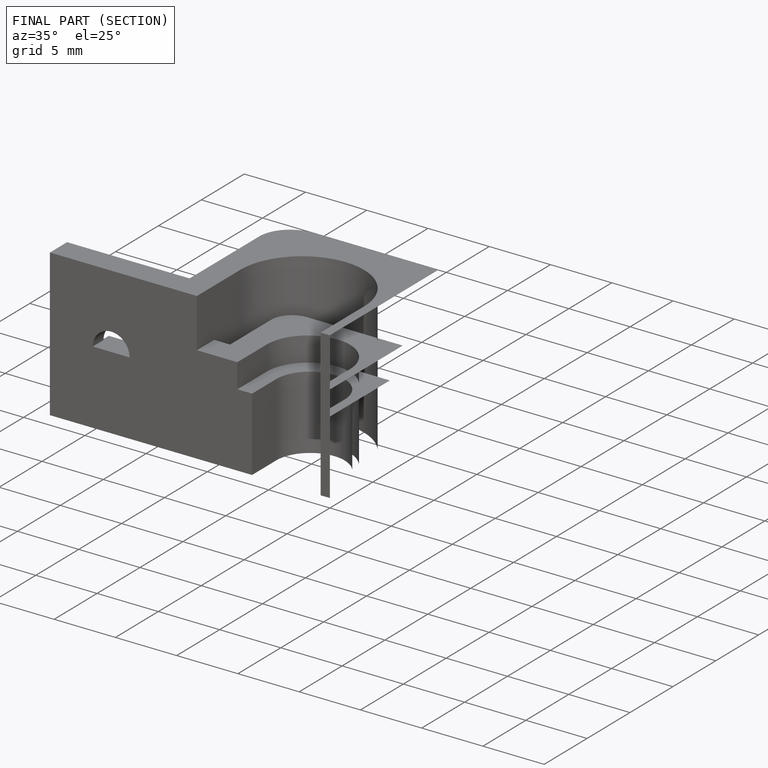
[diagram: finished part — half-section view (interior)]
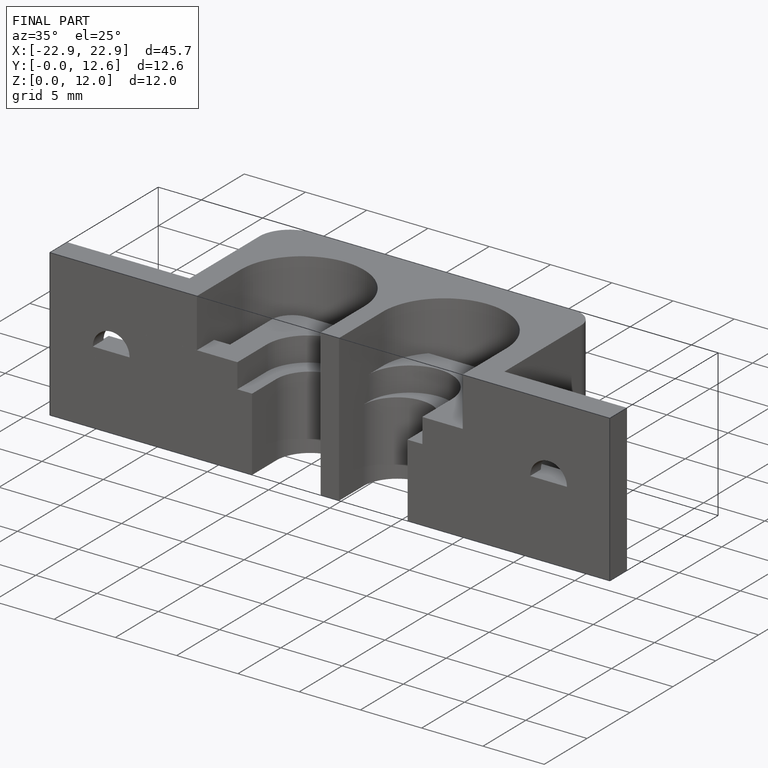
[diagram: finished part — iso view with bounding-box wireframe]
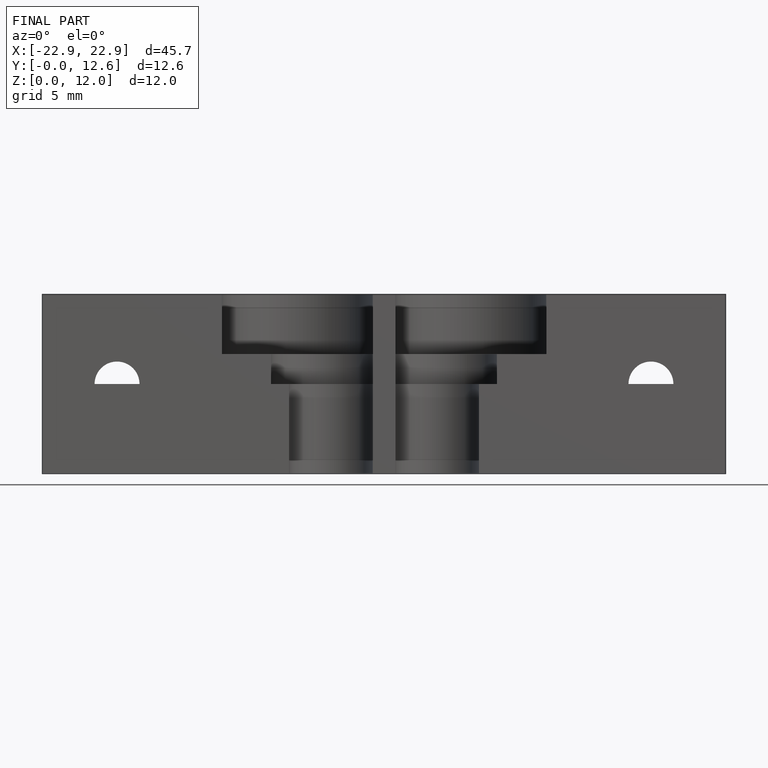
[diagram: finished part — front view with bounding-box wireframe]
